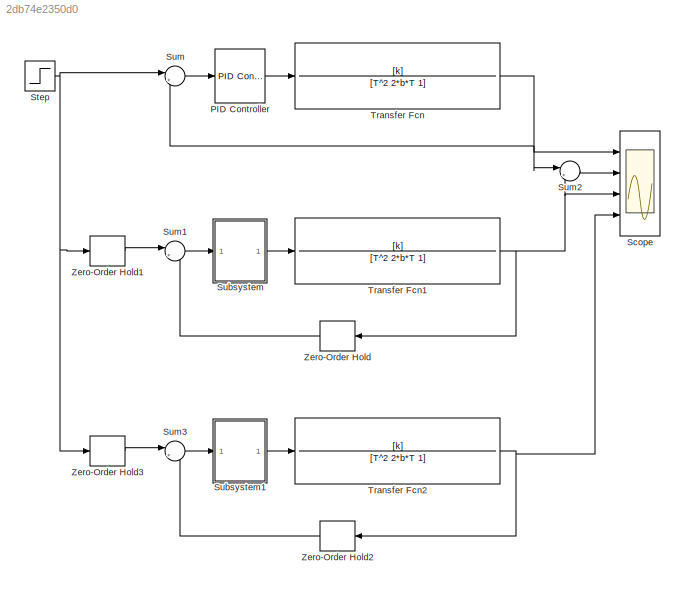
MODEL slx_2db74e2350d0
KIND model
CONFIG AbsTol = auto
CONFIG EnableMultiTasking = off
CONFIG FixedStep = 1e-3
CONFIG MaxStep = auto
CONFIG MinStep = auto
CONFIG RelTol = 1e-3
CONFIG SampleTimeConstraint = Unconstrained
CONFIG SolverName = FixedStepAuto
CONFIG StartTime = 0.0
CONFIG StopTime = 1
BLOCK [Reference] PID Controller  REF=slpidlib/PID Controller
  Ports = [1, 1]
  SourceBlock = slpidlib/PID Controller
  SourceProductBaseCode = SL
  SourceType = PID 1dof
BLOCK [Scope] Scope
  Floating = off
  NumInputPorts = 4
  Ports = [4]
  ScopeSpecificationString = Simulink.scopes.TimeScopeBlockCfg('CurrentConfiguration', extmgr.ConfigurationSet(extmgr.Configuration('Core','General UI',true,'FigureColor',[1 1 1]),extmgr.Configuration('Core','Source UI',true),extmgr.Configuration('Sources','WiredSimulink',true),extmgr.Configuration('Visuals','Time Domain',true,'SerializedDisplays',{struct('MinYLimReal','-0.14207','MaxYLimReal','1.14986','YLabelReal','','MinYL...<+2010ch>
BLOCK [Step] Step
  SampleTime = 0
  Time = 0
  VectorParams1D = off
  ZeroCross = off
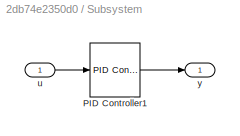
BLOCK [SubSystem] Subsystem
  Ports = [1, 1]
  RequestExecContextInheritance = off
  TreatAsAtomicUnit = on
BLOCK [Reference] Subsystem/PID Controller1  REF=slpidlib/PID Controller
  Ports = [1, 1]
  SourceBlock = slpidlib/PID Controller
  SourceProductBaseCode = SL
  SourceType = PID 1dof
BLOCK [Inport] Subsystem/u
BLOCK [Outport] Subsystem/y
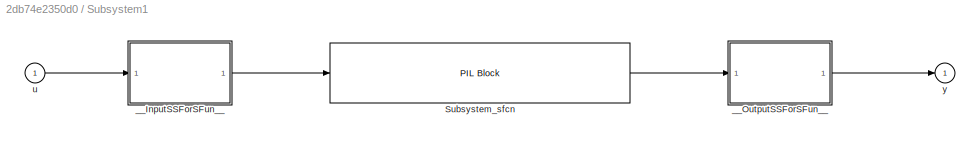
BLOCK [SubSystem] Subsystem1
  DialogController = pil_create_dialog
  LoadFcn = try\n   if ~strcmp(rtw.pil.getPILVersion, '9.11 (R2021b)_15')\n      set_param(gcb, 'DialogController', '');\n      set_param(gcb, 'DialogControllerArgs', '');\n   end\ncatch e\n      set_param(gcb, 'DialogController', '');\n      set_param(gcb, 'DialogControllerArgs', '');\nend
  Ports = [1, 1]
  RequestExecContextInheritance = off
BLOCK [Reference] Subsystem1/Subsystem_sfcn  REF=pil_lib/PIL Block
  Ports = [1, 1]
  SourceBlock = pil_lib/PIL Block
  SourceProductBaseCode = RT
  SourceType = XILBlock
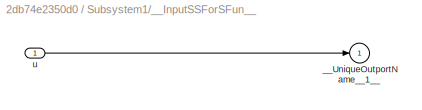
BLOCK [SubSystem] Subsystem1/__InputSSForSFun__
  PermitHierarchicalResolution = ExplicitOnly
  Ports = [1, 1]
  RequestExecContextInheritance = off
BLOCK [Outport] Subsystem1/__InputSSForSFun__/__UniqueOutportName__1__
BLOCK [Inport] Subsystem1/__InputSSForSFun__/u
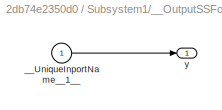
BLOCK [SubSystem] Subsystem1/__OutputSSForSFun__
  PermitHierarchicalResolution = ExplicitOnly
  Ports = [1, 1]
  RequestExecContextInheritance = off
BLOCK [Inport] Subsystem1/__OutputSSForSFun__/__UniqueInportName__1__
BLOCK [Outport] Subsystem1/__OutputSSForSFun__/y
BLOCK [Inport] Subsystem1/u
BLOCK [Outport] Subsystem1/y
BLOCK [Sum] Sum
  Inputs = |+-
  Ports = [2, 1]
BLOCK [Sum] Sum1
  Inputs = |+-
  Ports = [2, 1]
BLOCK [Sum] Sum2
  Inputs = |+-
  Ports = [2, 1]
BLOCK [Sum] Sum3
  Inputs = |+-
  Ports = [2, 1]
BLOCK [TransferFcn] Transfer Fcn
  Denominator = [T^2 2*b*T 1]
  Numerator = [k]
BLOCK [TransferFcn] Transfer Fcn1
  Denominator = [T^2 2*b*T 1]
  Numerator = [k]
BLOCK [TransferFcn] Transfer Fcn2
  Denominator = [T^2 2*b*T 1]
  Numerator = [k]
BLOCK [ZeroOrderHold] Zero-Order Hold
  SampleTime = 0.01
BLOCK [ZeroOrderHold] Zero-Order Hold1
  SampleTime = 0.01
BLOCK [ZeroOrderHold] Zero-Order Hold2
  SampleTime = 0.01
BLOCK [ZeroOrderHold] Zero-Order Hold3
  SampleTime = 0.01
LINE PID Controller:1 -> Transfer Fcn:1
NET Step:1 -> Sum:1, Zero-Order Hold1:1, Zero-Order Hold3:1
LINE Subsystem/PID Controller1:1 -> Subsystem/y:1
LINE Subsystem/u:1 -> Subsystem/PID Controller1:1
LINE Subsystem1/Subsystem_sfcn:1 -> Subsystem1/__OutputSSForSFun__:1
LINE Subsystem1/__InputSSForSFun__/u:1 -> Subsystem1/__InputSSForSFun__/__UniqueOutportName__1__:1
LINE Subsystem1/__InputSSForSFun__:1 -> Subsystem1/Subsystem_sfcn:1
LINE Subsystem1/__OutputSSForSFun__/__UniqueInportName__1__:1 -> Subsystem1/__OutputSSForSFun__/y:1
LINE Subsystem1/__OutputSSForSFun__:1 -> Subsystem1/y:1
LINE Subsystem1/u:1 -> Subsystem1/__InputSSForSFun__:1
LINE Subsystem1:1 -> Transfer Fcn2:1
LINE Subsystem:1 -> Transfer Fcn1:1
LINE Sum1:1 -> Subsystem:1
LINE Sum2:1 -> Scope:2
LINE Sum3:1 -> Subsystem1:1
LINE Sum:1 -> PID Controller:1
NET Transfer Fcn1:1 -> Scope:3, Sum2:2, Zero-Order Hold:1
NET Transfer Fcn2:1 -> Scope:4, Zero-Order Hold2:1
NET Transfer Fcn:1 -> Scope:1, Sum2:1, Sum:2
LINE Zero-Order Hold1:1 -> Sum1:1
LINE Zero-Order Hold2:1 -> Sum3:2
LINE Zero-Order Hold3:1 -> Sum3:1
LINE Zero-Order Hold:1 -> Sum1:2
note: NET lines group one-source signal fan-out (src -> all destinations, sorted); 1:1 wires keep LINE
